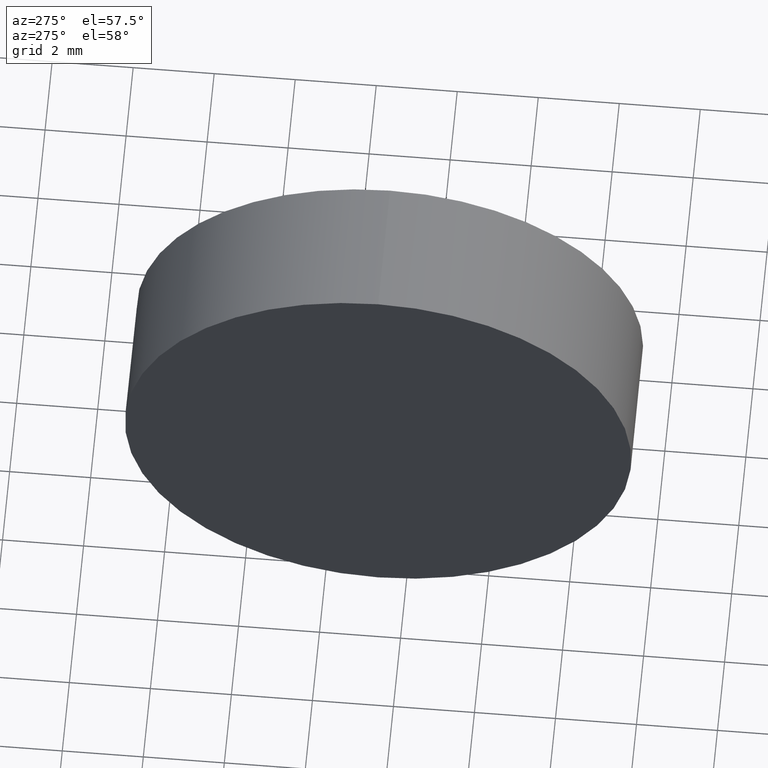
[diagram: clean part render]
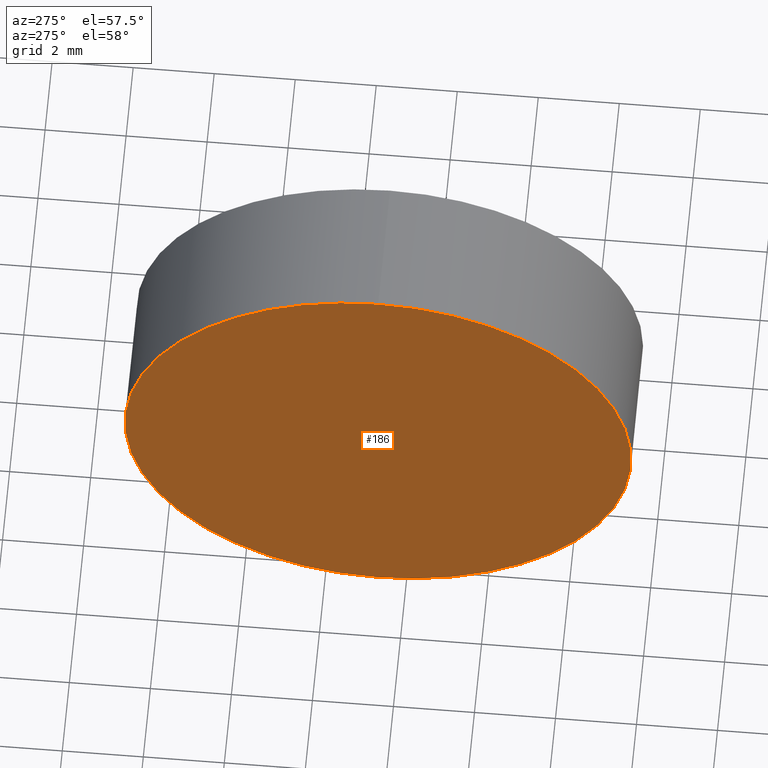
[diagram: same view with one face highlighted and labeled with its STEP entity id]
A machine part, auxiliary view. The second image highlights one B-rep face of the part: STEP entity #186.
In plain terms, the highlighted planar face has unit normal (1, 0, 0).
Its self-contained STEP definition (entity closure, byte-faithful):
#2 = CIRCLE ( 'NONE', #29, 6.249999999999998200 ) ;
#12 = CARTESIAN_POINT ( 'NONE',  ( 57.54632776745975800, 34.68901056168621700, -6.249999999999998200 ) ) ;
#23 = EDGE_LOOP ( 'NONE', ( #43, #126 ) ) ;
#24 = DIRECTION ( 'NONE',  ( -1.000000000000000000, -0.0000000000000000000, -0.0000000000000000000 ) ) ;
#29 = AXIS2_PLACEMENT_3D ( 'NONE', #119, #132, #66 ) ;
#43 = ORIENTED_EDGE ( 'NONE', *, *, #128, .T. ) ;
#62 = AXIS2_PLACEMENT_3D ( 'NONE', #135, #24, #122 ) ;
#66 = DIRECTION ( 'NONE',  ( 0.0000000000000000000, 0.0000000000000000000, 1.000000000000000000 ) ) ;
#94 = PLANE ( 'NONE',  #114 ) ;
#106 = EDGE_CURVE ( 'NONE', #169, #129, #178, .T. ) ;
#114 = AXIS2_PLACEMENT_3D ( 'NONE', #166, #156, #157 ) ;
#119 = CARTESIAN_POINT ( 'NONE',  ( 57.54632776745975800, 34.68901056168621700, 0.0000000000000000000 ) ) ;
#122 = DIRECTION ( 'NONE',  ( 0.0000000000000000000, 0.0000000000000000000, 1.000000000000000000 ) ) ;
#126 = ORIENTED_EDGE ( 'NONE', *, *, #106, .T. ) ;
#128 = EDGE_CURVE ( 'NONE', #129, #169, #2, .T. ) ;
#129 = VERTEX_POINT ( 'NONE', #167 ) ;
#132 = DIRECTION ( 'NONE',  ( -1.000000000000000000, -0.0000000000000000000, -0.0000000000000000000 ) ) ;
#135 = CARTESIAN_POINT ( 'NONE',  ( 57.54632776745975800, 34.68901056168621700, 0.0000000000000000000 ) ) ;
#144 = FACE_OUTER_BOUND ( 'NONE', #23, .T. ) ;
#156 = DIRECTION ( 'NONE',  ( 1.000000000000000000, 0.0000000000000000000, 0.0000000000000000000 ) ) ;
#157 = DIRECTION ( 'NONE',  ( 0.0000000000000000000, 0.0000000000000000000, -1.000000000000000000 ) ) ;
#166 = CARTESIAN_POINT ( 'NONE',  ( 57.54632776745975800, 34.68901056168621700, 0.0000000000000000000 ) ) ;
#167 = CARTESIAN_POINT ( 'NONE',  ( 57.54632776745975800, 34.68901056168621700, 6.249999999999998200 ) ) ;
#169 = VERTEX_POINT ( 'NONE', #12 ) ;
#178 = CIRCLE ( 'NONE', #62, 6.249999999999998200 ) ;
#186 = ADVANCED_FACE ( 'NONE', ( #144 ), #94, .F. ) ;